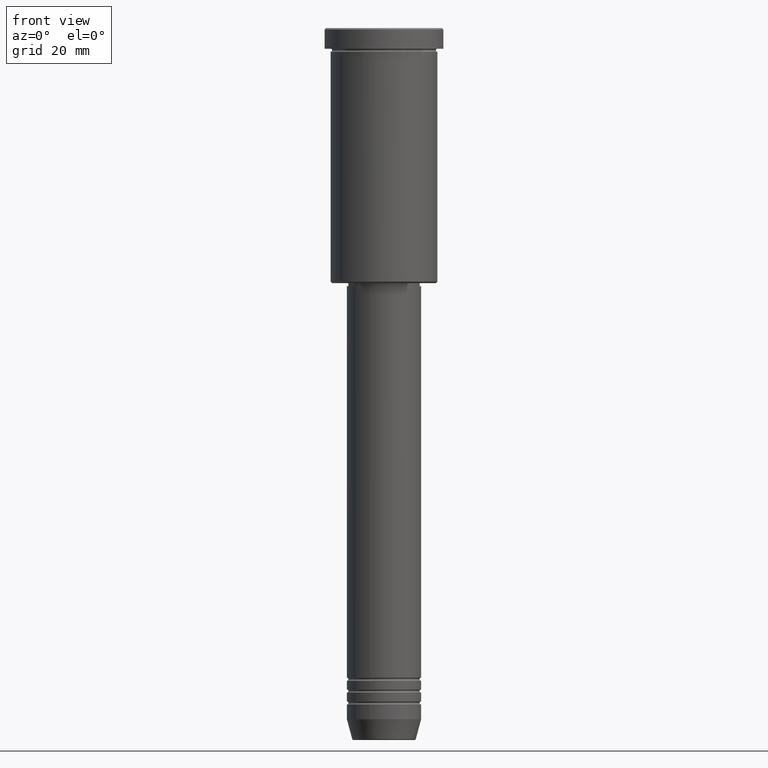
[diagram: clean part render]
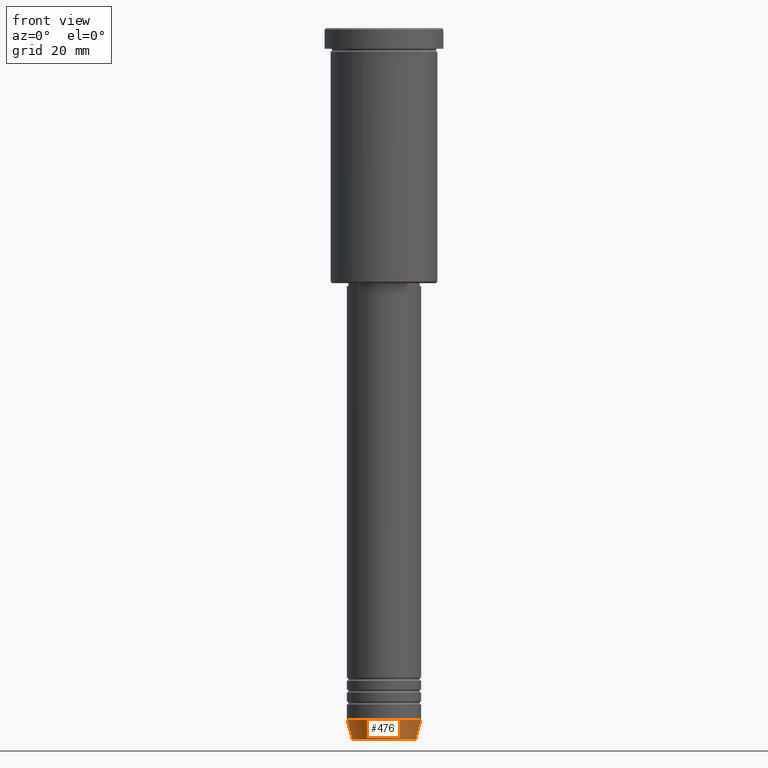
[diagram: same view with one face highlighted and labeled with its STEP entity id]
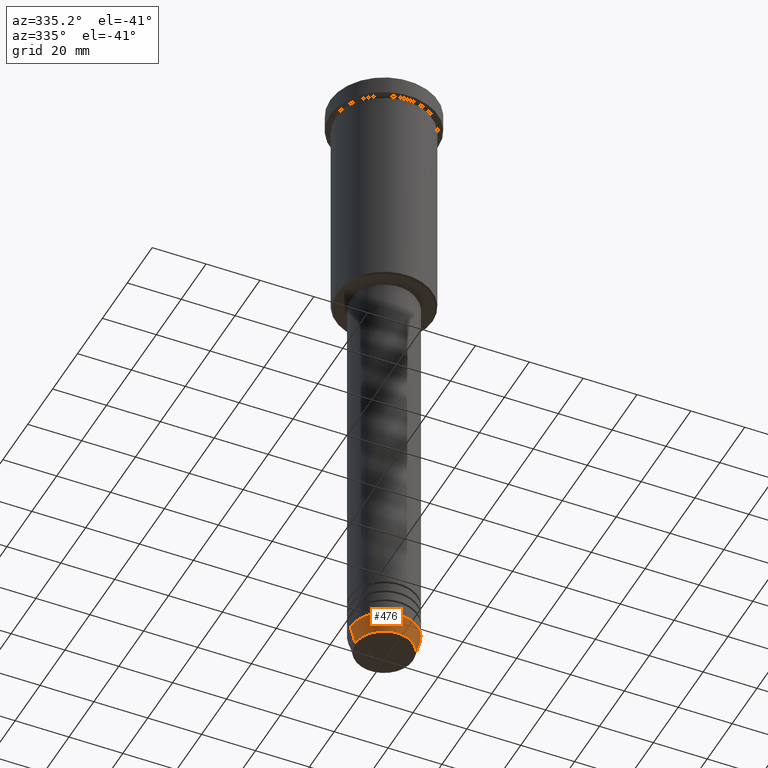
[diagram: same view with one face highlighted and labeled with its STEP entity id]
A machine part, front view. The second image highlights one B-rep face of the part: STEP entity #476.
A second angle (auxiliary view) of the same face is appended — the face is thin or edge-on in the first view.
In plain terms, the highlighted conical surface has half-angle 15 deg.
Its self-contained STEP definition (entity closure, byte-faithful):
#71 = DIRECTION ( 'NONE',  ( -0.000000000000000000, -0.000000000000000000, 1.000000000000000000 ) ) ;
#72 = CARTESIAN_POINT ( 'NONE',  ( -12.50000000000000000, 1.530808498934191521E-15, -233.0000000000000000 ) ) ;
#115 = VECTOR ( 'NONE', #960, 1000.000000000000000 ) ;
#151 = CARTESIAN_POINT ( 'NONE',  ( -10.72365507213719127, 1.422038742429750516E-15, -239.6294095225512706 ) ) ;
#162 = AXIS2_PLACEMENT_3D ( 'NONE', #873, #961, #860 ) ;
#219 = EDGE_CURVE ( 'NONE', #868, #814, #383, .T. ) ;
#242 = DIRECTION ( 'NONE',  ( 1.000000000000000000, 0.000000000000000000, 0.000000000000000000 ) ) ;
#244 = CARTESIAN_POINT ( 'NONE',  ( 12.50000000000000000, 0.000000000000000000, -233.0000000000000000 ) ) ;
#272 = VECTOR ( 'NONE', #1153, 1000.000000000000000 ) ;
#383 = CIRCLE ( 'NONE', #1042, 10.72365507213719127 ) ;
#459 = ORIENTED_EDGE ( 'NONE', *, *, #219, .T. ) ;
#476 = ADVANCED_FACE ( 'NONE', ( #505 ), #521, .T. ) ;
#505 = FACE_OUTER_BOUND ( 'NONE', #685, .T. ) ;
#521 = CONICAL_SURFACE ( 'NONE', #162, 12.50000000000000000, 0.2617993877991500740 ) ;
#522 = CARTESIAN_POINT ( 'NONE',  ( 0.000000000000000000, 0.000000000000000000, -233.0000000000000000 ) ) ;
#590 = ORIENTED_EDGE ( 'NONE', *, *, #708, .F. ) ;
#606 = LINE ( 'NONE', #768, #115 ) ;
#650 = EDGE_CURVE ( 'NONE', #868, #850, #606, .T. ) ;
#685 = EDGE_LOOP ( 'NONE', ( #906, #459, #976, #590 ) ) ;
#699 = EDGE_CURVE ( 'NONE', #814, #833, #712, .T. ) ;
#708 = EDGE_CURVE ( 'NONE', #850, #833, #878, .T. ) ;
#712 = LINE ( 'NONE', #244, #272 ) ;
#768 = CARTESIAN_POINT ( 'NONE',  ( -12.50000000000000000, 1.530808498934191521E-15, -233.0000000000000000 ) ) ;
#807 = AXIS2_PLACEMENT_3D ( 'NONE', #522, #1147, #1175 ) ;
#814 = VERTEX_POINT ( 'NONE', #1037 ) ;
#833 = VERTEX_POINT ( 'NONE', #1058 ) ;
#850 = VERTEX_POINT ( 'NONE', #72 ) ;
#860 = DIRECTION ( 'NONE',  ( 1.000000000000000000, 0.000000000000000000, 0.000000000000000000 ) ) ;
#868 = VERTEX_POINT ( 'NONE', #151 ) ;
#873 = CARTESIAN_POINT ( 'NONE',  ( 0.000000000000000000, 0.000000000000000000, -233.0000000000000000 ) ) ;
#878 = CIRCLE ( 'NONE', #807, 12.50000000000000000 ) ;
#906 = ORIENTED_EDGE ( 'NONE', *, *, #650, .F. ) ;
#960 = DIRECTION ( 'NONE',  ( -0.2588190451025213501, 3.169619151431772337E-17, 0.9659258262890680902 ) ) ;
#961 = DIRECTION ( 'NONE',  ( -0.000000000000000000, -0.000000000000000000, 1.000000000000000000 ) ) ;
#976 = ORIENTED_EDGE ( 'NONE', *, *, #699, .T. ) ;
#1037 = CARTESIAN_POINT ( 'NONE',  ( 10.72365507213719127, 0.000000000000000000, -239.6294095225512706 ) ) ;
#1042 = AXIS2_PLACEMENT_3D ( 'NONE', #1071, #71, #242 ) ;
#1058 = CARTESIAN_POINT ( 'NONE',  ( 12.50000000000000000, 0.000000000000000000, -233.0000000000000000 ) ) ;
#1071 = CARTESIAN_POINT ( 'NONE',  ( 0.000000000000000000, 0.000000000000000000, -239.6294095225512706 ) ) ;
#1147 = DIRECTION ( 'NONE',  ( -0.000000000000000000, -0.000000000000000000, 1.000000000000000000 ) ) ;
#1153 = DIRECTION ( 'NONE',  ( 0.2588190451025213501, 0.000000000000000000, 0.9659258262890680902 ) ) ;
#1175 = DIRECTION ( 'NONE',  ( 1.000000000000000000, 0.000000000000000000, 0.000000000000000000 ) ) ;